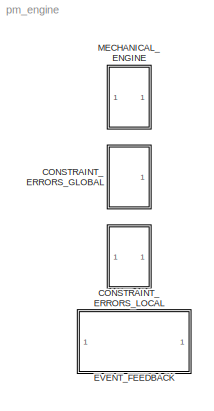
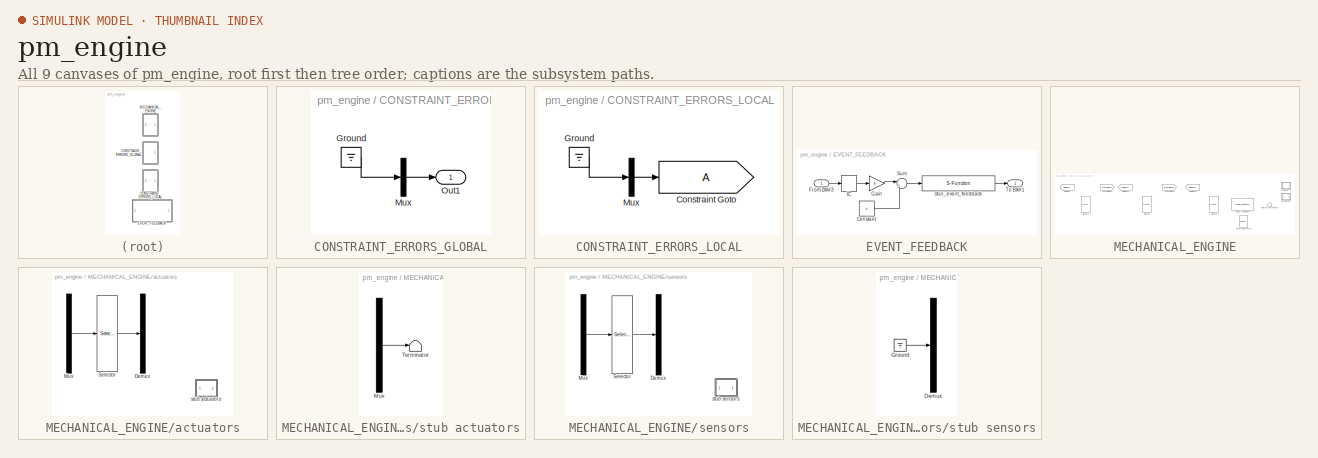
[diagram: thumbnail index - all 9 canvases of the model, root first then tree order]
MODEL pm_engine
KIND library
BLOCK [SubSystem] CONSTRAINT_ERRORS_GLOBAL
  InitFcn = mech_set_param(gcbh,'Tags','');
  MaskEnableString = on
  MaskIconFrame = on
  MaskIconOpaque = on
  MaskIconRotate = none
  MaskIconUnits = autoscale
  MaskInitialization = mech_constraintOutput('maskinitglobal', gcbh, Tags);
  MaskPromptString = Tags
  MaskSelfModifiable = on
  MaskStyleString = edit
  MaskToolTipString = on
  MaskTunableValueString = off
  MaskVariables = Tags=&1;
  MaskVisibilityString = off
  MinAlgLoopOccurrences = off
  Ports = [0, 1]
  RTWSystemCode = Auto
  ShowPortLabels = off
  TreatAsAtomicUnit = off
BLOCK [Ground] CONSTRAINT_ERRORS_GLOBAL/Ground
BLOCK [Mux] CONSTRAINT_ERRORS_GLOBAL/Mux
  DisplayOption = bar
  Inputs = 1
  Ports = [1, 1]
BLOCK [Outport] CONSTRAINT_ERRORS_GLOBAL/Out1
  BusOutputAsStruct = off
  IconDisplay = Port number
BLOCK [SubSystem] CONSTRAINT_ERRORS_LOCAL
  MaskCallbackString = |
  MaskEnableString = on,on
  MaskIconFrame = on
  MaskIconOpaque = on
  MaskIconRotate = none
  MaskIconUnits = autoscale
  MaskInitialization = mech_constraintOutput('maskinitlocal', gcbh, GotoTag, NumInputs);
  MaskPromptString = Goto Tag|Num Inputs
  MaskSelfModifiable = on
  MaskStyleString = edit,edit
  MaskTabNameString = ,
  MaskToolTipString = on,on
  MaskTunableValueString = on,on
  MaskType = ConstraintErrorBlock
  MaskValueString = A|0
  MaskVarAliasString = ,
  MaskVariables = GotoTag=&1;NumInputs=@2;
  MaskVisibilityString = on,on
  MinAlgLoopOccurrences = off
  Ports = []
  RTWSystemCode = Auto
  TreatAsAtomicUnit = off
BLOCK [Goto] CONSTRAINT_ERRORS_LOCAL/Constraint Goto
  DialogController = Simulink.DDGSource
  GotoTag = A
  TagVisibility = global
BLOCK [Ground] CONSTRAINT_ERRORS_LOCAL/Ground
BLOCK [Mux] CONSTRAINT_ERRORS_LOCAL/Mux
  DisplayOption = bar
  Inputs = 1
  Ports = [1, 1]
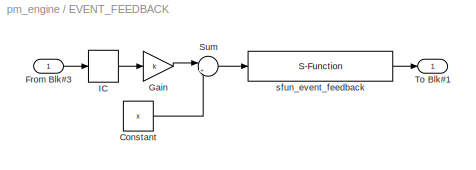
BLOCK [SubSystem] EVENT_FEEDBACK
  MaskCallbackString = |||
  MaskEnableString = on,on,on,on
  MaskIconFrame = on
  MaskIconOpaque = on
  MaskIconRotate = none
  MaskIconUnits = autoscale
  MaskInitialization = sfun = [getfullname(gcbh) '/sfun_event_feedback'];\nset_param(sfun, 'Parameters', ...\n	num2str(feature('SimMechanicsModeIteration')));\n
  MaskPromptString = InitialCondition|Gain|Constant|ModeIteration
  MaskSelfModifiable = on
  MaskStyleString = edit,edit,edit,edit
  MaskTabNameString = ,,,
  MaskToolTipString = on,on,on,on
  MaskTunableValueString = on,on,on,on
  MaskType = Event Feedback
  MaskValueString = 2|0.5|1.0|1
  MaskVarAliasString = ,,,
  MaskVariables = ic=@1;k=@2;x=@3;ModeIteration=@4;
  MaskVisibilityString = on,on,on,on
  MinAlgLoopOccurrences = off
  Ports = [1, 1]
  RTWSystemCode = Auto
  TreatAsAtomicUnit = off
BLOCK [Constant] EVENT_FEEDBACK/Constant
  Value = x
BLOCK [Inport] EVENT_FEEDBACK/From Blk#3
  IconDisplay = Port number
  LatchInput = off
  Port = 1
BLOCK [Gain] EVENT_FEEDBACK/Gain
  Gain = k
BLOCK [InitialCondition] EVENT_FEEDBACK/IC
  Value = ic
BLOCK [Sum] EVENT_FEEDBACK/Sum
  IconShape = round
  Inputs = |++
  Ports = [2, 1]
BLOCK [Outport] EVENT_FEEDBACK/To Blk#1
  BusOutputAsStruct = off
  IconDisplay = Port number
BLOCK [S-Function] EVENT_FEEDBACK/sfun_event_feedback
  FunctionName = sfun_event_feedback
  Parameters = 1
  Ports = [1, 1]
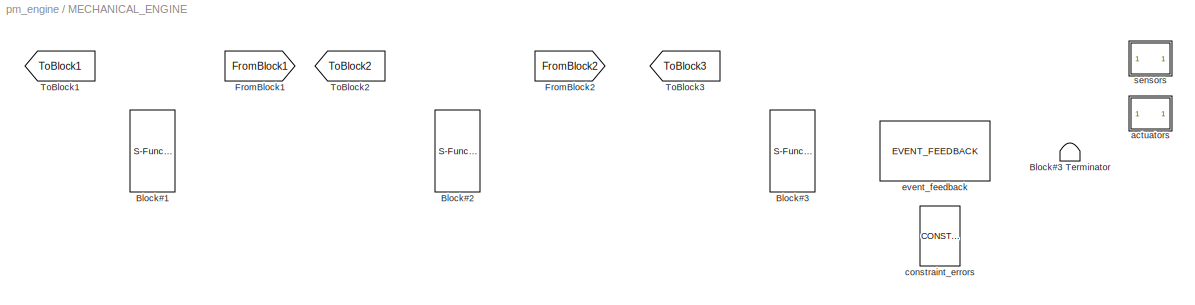
BLOCK [SubSystem] MECHANICAL_ENGINE
  MaskEnableString = on
  MaskIconFrame = on
  MaskIconOpaque = on
  MaskIconRotate = none
  MaskIconUnits = autoscale
  MaskInitialization = mech_initGround('engine', gcbh, MachineId);
  MaskPromptString = MachineId
  MaskSelfModifiable = on
  MaskStyleString = edit
  MaskToolTipString = on
  MaskTunableValueString = on
  MaskValueString = 0
  MaskVariables = MachineId=@1;
  MaskVisibilityString = on
  MinAlgLoopOccurrences = off
  Ports = []
  RTWSystemCode = Auto
  TreatAsAtomicUnit = off
BLOCK [S-Function] MECHANICAL_ENGINE/Block#1
  FunctionName = mech_engine
  Parameters = 1,0
  Ports = []
BLOCK [S-Function] MECHANICAL_ENGINE/Block#2
  FunctionName = mech_engine
  Parameters = 2,0
  Ports = []
BLOCK [S-Function] MECHANICAL_ENGINE/Block#3
  FunctionName = mech_engine
  Parameters = 3,0
  Ports = []
BLOCK [Terminator] MECHANICAL_ENGINE/Block#3 Terminator
BLOCK [Goto] MECHANICAL_ENGINE/FromBlock1
  DialogController = Simulink.DDGSource
  GotoTag = FromBlock1
  TagVisibility = global
BLOCK [Goto] MECHANICAL_ENGINE/FromBlock2
  DialogController = Simulink.DDGSource
  GotoTag = FromBlock2
  TagVisibility = global
BLOCK [From] MECHANICAL_ENGINE/ToBlock1
  CloseFcn = tagdialog Close
  DialogController = Simulink.DDGSource
  GotoTag = ToBlock1
BLOCK [From] MECHANICAL_ENGINE/ToBlock2
  CloseFcn = tagdialog Close
  DialogController = Simulink.DDGSource
  GotoTag = ToBlock2
BLOCK [From] MECHANICAL_ENGINE/ToBlock3
  CloseFcn = tagdialog Close
  DialogController = Simulink.DDGSource
  GotoTag = ToBlock3
BLOCK [SubSystem] MECHANICAL_ENGINE/actuators
  MinAlgLoopOccurrences = off
  Ports = []
  RTWSystemCode = Auto
  TreatAsAtomicUnit = off
BLOCK [Demux] MECHANICAL_ENGINE/actuators/Demux
  Outputs = 3
  Ports = [1, 3]
BLOCK [Mux] MECHANICAL_ENGINE/actuators/Mux
  DisplayOption = bar
  Inputs = 3
  Ports = [3, 1]
BLOCK [Selector] MECHANICAL_ENGINE/actuators/Selector
  Elements = [1 2 3]
  InputPortWidth = 3
  Ports = [1, 1]
BLOCK [SubSystem] MECHANICAL_ENGINE/actuators/stub actuators
  MinAlgLoopOccurrences = off
  Ports = []
  RTWSystemCode = Auto
  TreatAsAtomicUnit = off
BLOCK [Mux] MECHANICAL_ENGINE/actuators/stub actuators/Mux
  DisplayOption = bar
  Inputs = 2
  Ports = [2, 1]
BLOCK [Terminator] MECHANICAL_ENGINE/actuators/stub actuators/Terminator
BLOCK [Reference] MECHANICAL_ENGINE/constraint_errors  REF=pm_engine/CONSTRAINT_ERRORS_LOCAL  (lib defined in mdl_cadc98b02313)
  GotoTag = A
  NumInputs = 0
  Ports = []
  SourceBlock = pm_engine/CONSTRAINT_ERRORS_LOCAL
  SourceType = ConstraintErrorBlock
BLOCK [Reference] MECHANICAL_ENGINE/event_feedback  REF=pm_engine/EVENT_FEEDBACK  (lib defined in mdl_cadc98b02313)
  ModeIteration = 1
  Ports = [1, 1]
  SourceBlock = pm_engine/EVENT_FEEDBACK
  SourceType = Event Feedback
  ic = 2
  k = 0.5
  x = 1.0
BLOCK [SubSystem] MECHANICAL_ENGINE/sensors
  MinAlgLoopOccurrences = off
  Ports = []
  RTWSystemCode = Auto
  TreatAsAtomicUnit = off
BLOCK [Demux] MECHANICAL_ENGINE/sensors/Demux
  Outputs = 2
  Ports = [1, 2]
BLOCK [Mux] MECHANICAL_ENGINE/sensors/Mux
  DisplayOption = bar
  Inputs = 2
  Ports = [2, 1]
BLOCK [Selector] MECHANICAL_ENGINE/sensors/Selector
  Elements = [1 2]
  InputPortWidth = 2
  Ports = [1, 1]
BLOCK [SubSystem] MECHANICAL_ENGINE/sensors/stub sensors
  MinAlgLoopOccurrences = off
  Ports = []
  RTWSystemCode = Auto
  TreatAsAtomicUnit = off
BLOCK [Demux] MECHANICAL_ENGINE/sensors/stub sensors/Demux
  Outputs = 2
  Ports = [1, 2]
BLOCK [Ground] MECHANICAL_ENGINE/sensors/stub sensors/Ground
LINE CONSTRAINT_ERRORS_GLOBAL/Ground:1 -> CONSTRAINT_ERRORS_GLOBAL/Mux:1
LINE CONSTRAINT_ERRORS_GLOBAL/Mux:1 -> CONSTRAINT_ERRORS_GLOBAL/Out1:1
LINE CONSTRAINT_ERRORS_LOCAL/Ground:1 -> CONSTRAINT_ERRORS_LOCAL/Mux:1
LINE CONSTRAINT_ERRORS_LOCAL/Mux:1 -> CONSTRAINT_ERRORS_LOCAL/Constraint Goto:1
LINE EVENT_FEEDBACK/Constant:1 -> EVENT_FEEDBACK/Sum:2
LINE EVENT_FEEDBACK/From Blk#3:1 -> EVENT_FEEDBACK/IC:1
LINE EVENT_FEEDBACK/Gain:1 -> EVENT_FEEDBACK/Sum:1
LINE EVENT_FEEDBACK/IC:1 -> EVENT_FEEDBACK/Gain:1
LINE EVENT_FEEDBACK/Sum:1 -> EVENT_FEEDBACK/sfun_event_feedback:1
LINE EVENT_FEEDBACK/sfun_event_feedback:1 -> EVENT_FEEDBACK/To Blk#1:1
LINE MECHANICAL_ENGINE/actuators/Mux:1 -> MECHANICAL_ENGINE/actuators/Selector:1
LINE MECHANICAL_ENGINE/actuators/Selector:1 -> MECHANICAL_ENGINE/actuators/Demux:1
LINE MECHANICAL_ENGINE/actuators/stub actuators/Mux:1 -> MECHANICAL_ENGINE/actuators/stub actuators/Terminator:1
LINE MECHANICAL_ENGINE/sensors/Mux:1 -> MECHANICAL_ENGINE/sensors/Selector:1
LINE MECHANICAL_ENGINE/sensors/Selector:1 -> MECHANICAL_ENGINE/sensors/Demux:1
LINE MECHANICAL_ENGINE/sensors/stub sensors/Ground:1 -> MECHANICAL_ENGINE/sensors/stub sensors/Demux:1
